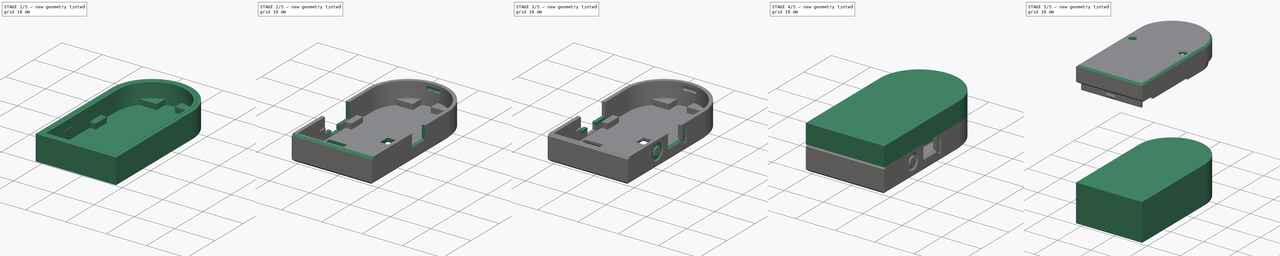
[diagram: build sequence overview — one tinted view per stage of 5, left to right]
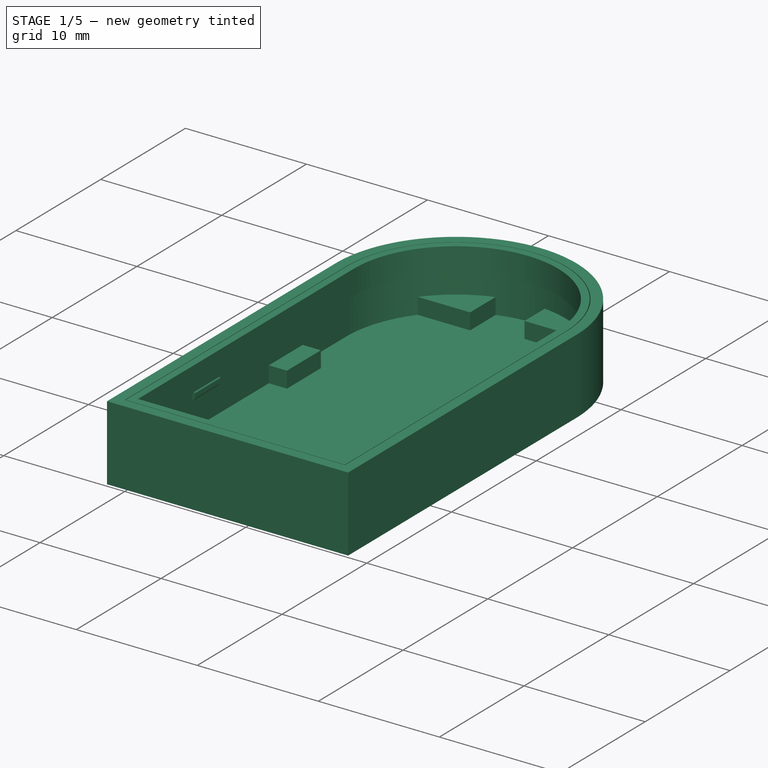
[diagram: stage 1 of 5 — iso view after this stage's code; geometry added in this stage tinted green]
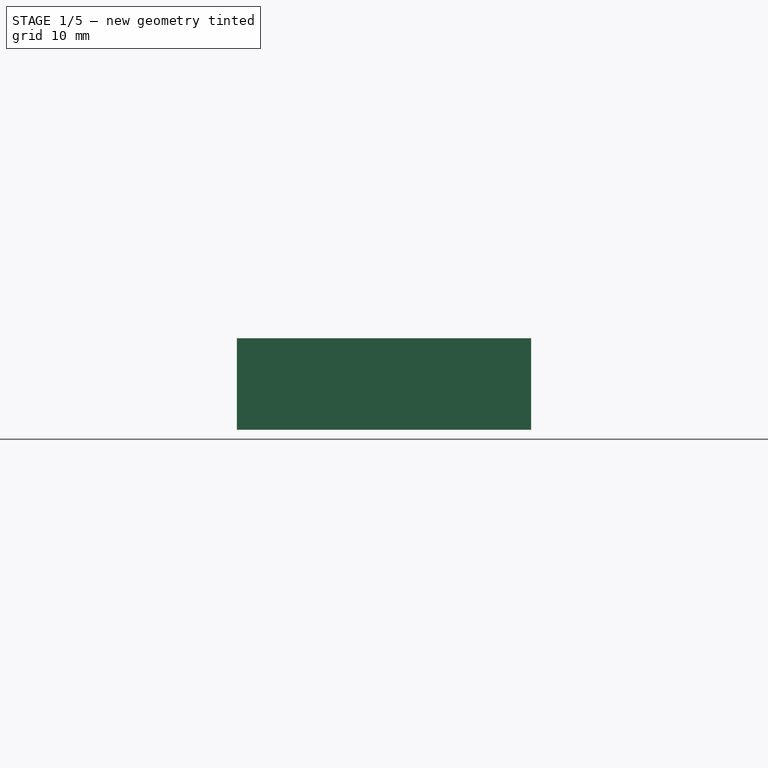
[diagram: stage 1 of 5 — front view after this stage's code; geometry added in this stage tinted green]
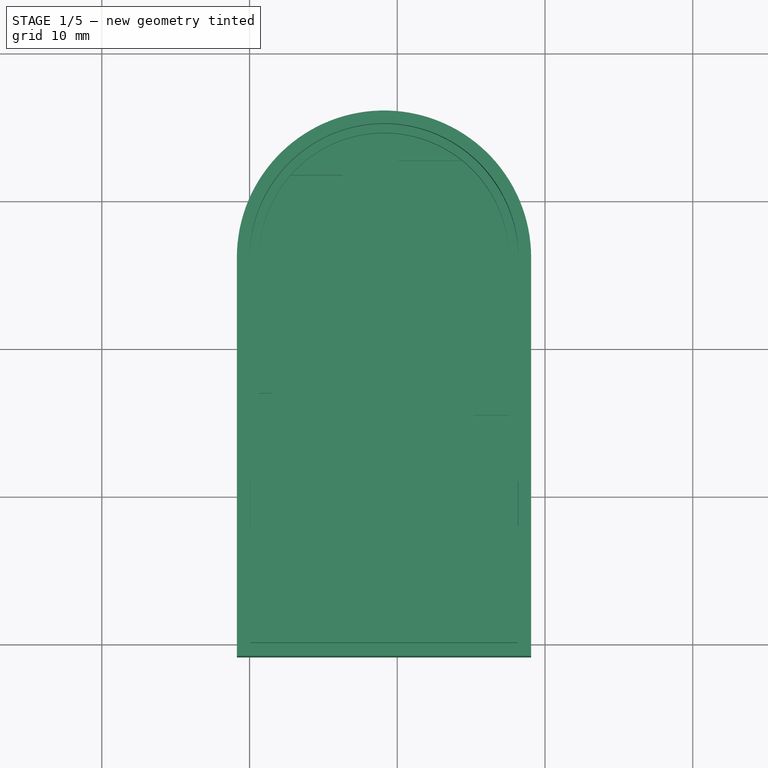
[diagram: stage 1 of 5 — top view after this stage's code; geometry added in this stage tinted green]
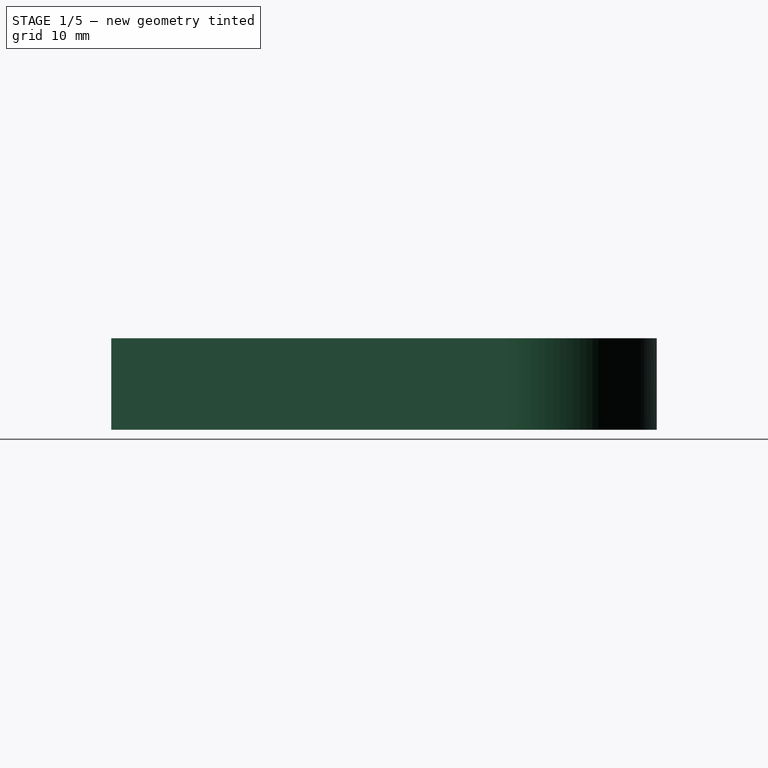
[diagram: stage 1 of 5 — right view after this stage's code; geometry added in this stage tinted green]
FCSTD DOCUMENT  (FreeCAD 0.20R29177 (Git))
Label: IMU-Case2_v12
License: All rights reserved
LicenseURL: http://en.wikipedia.org/wiki/All_rights_reserved
objects: Sketcher::SketchObject×15, PartDesign::Pocket×11, PartDesign::Pad×8, PartDesign::Chamfer×8, PartDesign::Body×3, PartDesign::SubShapeBinder×2, PartDesign::ShapeBinder×1, Spreadsheet::Sheet×1, App::Link×1, App::Part×1
note: 75 computed .brp shape members not serialized (recipe doc carries the construction recipe); baked Part::Feature solids carry a one-line shape summary decoded from their .brp

FEATURE [Sketcher::SketchObject] Sketch
  FullyConstrained = true
  expr: Constraints[15] = Spreadsheet.pcb_h + Spreadsheet.pcb_clearance
  expr: Constraints[25] = Spreadsheet.wall_t
  expr: Constraints[26] = Spreadsheet.wall_t
  expr: Constraints[27] = Spreadsheet.wall_t
  expr: Constraints[8] = Spreadsheet.pcb_w + Spreadsheet.pcb_clearance
  sketch-geometry (9):
    g0: LineSegment StartX=0 StartY=0 StartZ=0 EndX=18.2 EndY=0 EndZ=0
    g1: LineSegment StartX=18.2 StartY=0 StartZ=0 EndX=18.2 EndY=26.1 EndZ=0
    g2: LineSegment StartX=0 StartY=0 StartZ=0 EndX=0 EndY=26.1 EndZ=0
    g3: ArcOfCircle CenterX=9.1 CenterY=26.1 CenterZ=0 NormalX=0 NormalY=0 NormalZ=1 AngleXU=0 Radius=9.1 StartAngle=3.3334e-06 EndAngle=3.14159
    g4: LineSegment StartX=9.1 StartY=0 StartZ=0 EndX=9.1 EndY=35.2 EndZ=0
    g5: LineSegment StartX=-0.86 StartY=-0.86 StartZ=0 EndX=19.06 EndY=-0.86 EndZ=0
    g6: LineSegment StartX=19.06 StartY=-0.86 StartZ=0 EndX=19.06 EndY=26.1 EndZ=0
    g7: LineSegment StartX=-0.86 StartY=-0.86 StartZ=0 EndX=-0.86 EndY=26.1 EndZ=0
    g8: ArcOfCircle CenterX=9.1 CenterY=26.1 CenterZ=0 NormalX=0 NormalY=0 NormalZ=1 AngleXU=0 Radius=9.96 StartAngle=1.28674e-09 EndAngle=3.14159
  constraints (29):
    c: Coincident(g0,g-1)
    c: Horizontal(g0)
    c: Coincident(g1,g0)
    c: Vertical(g1)
    c: Coincident(g2,g0)
    c: Vertical(g2)
    c: Coincident(g3,g2)
    c: Coincident(g3,g1)
    c: Distance(g0) = 18.2
    c: Tangent(g3,g2)
    c: Tangent(g3,g1)
    c: PointOnObject(g4,g0)
    c: PointOnObject(g4,g3)
    c: Vertical(g4)
    c: PointOnObject(g3,g4)
    c: Distance(g4) = 35.2
    c: Horizontal(g5)
    c: Coincident(g6,g5)
    c: Vertical(g6)
    c: Coincident(g7,g5)
    c: Vertical(g7)
    c: Coincident(g8,g7)
    c: Coincident(g8,g6)
    c: Tangent(g8,g7)
    c: Tangent(g8,g6)
    c: DistanceY(g5,g0) = 0.86
    c: DistanceX(g0,g5) = 0.86
    c: DistanceX(g5,g-1) = 0.86
    c: DistanceY(g1,g6) = 0
FEATURE [PartDesign::Pad] Pad
  Direction = (0,0,1)
  Length = 3.9
  Length2 = 2.3
  Profile = -> Sketch
  Type = 4
  expr: Length = Spreadsheet.box_pocket_depth
FEATURE [Sketcher::SketchObject] Sketch001
  FullyConstrained = true
  MapMode = 5
  Support = -> [XY_Plane001]
  expr: Constraints[14] = Spreadsheet.pcb_h + Spreadsheet.pcb_clearance
  expr: Constraints[8] = Spreadsheet.pcb_w + Spreadsheet.pcb_clearance
  sketch-geometry (5):
    g0: LineSegment StartX=0 StartY=26.1 StartZ=0 EndX=0 EndY=0 EndZ=0
    g1: LineSegment StartX=18.2 StartY=0 StartZ=0 EndX=18.2 EndY=26.1 EndZ=0
    g2: ArcOfCircle CenterX=9.1 CenterY=26.1 CenterZ=0 NormalX=0 NormalY=0 NormalZ=1 AngleXU=0 Radius=9.1 StartAngle=0 EndAngle=3.14159
    g3: LineSegment StartX=0 StartY=0 StartZ=0 EndX=18.2 EndY=0 EndZ=0
    g4: LineSegment StartX=9.1 StartY=35.2 StartZ=0 EndX=9.1 EndY=0 EndZ=0
  constraints (15):
    c: Vertical(g0)
    c: Vertical(g1)
    c: Coincident(g2,g0)
    c: Tangent(g2,g0)
    c: Coincident(g3,g0)
    c: Coincident(g3,g1)
    c: Horizontal(g3)
    c: Coincident(g-1,g0)
    c: DistanceX(g0,g1) = 18.2
    c: Tangent(g2,g1) = -1.5708
    c: PointOnObject(g4,g2)
    c: PointOnObject(g4,g3)
    c: Vertical(g4)
    c: PointOnObject(g2,g4)
    c: DistanceY(g4,g4) = 35.2
FEATURE [PartDesign::Pocket] Pocket
  BaseFeature = -> Pad
  Direction = (0,0,-1)
  Length = 0.01
  Length2 = 20
  Profile = -> Sketch001
  Type = 4
FEATURE [Sketcher::SketchObject] Sketch002
  ExternalGeometry = -> [Pocket]
  FullyConstrained = true
  MapMode = 5
  Placement = pos=(-0.86,0,0) rot=(0.57735,-0.57735,-0.57735;2.0944rad)
  Support = -> [Pocket]
  sketch-geometry (8):
    g0: LineSegment StartX=-18.3 StartY=-0.01 StartZ=0 EndX=-18.3 EndY=3.99 EndZ=0
    g1: LineSegment StartX=-18.3 StartY=3.99 StartZ=0 EndX=-9.7 EndY=3.99 EndZ=0
    g2: LineSegment StartX=-9.7 StartY=3.99 StartZ=0 EndX=-9.7 EndY=-0.01 EndZ=0
    g3: LineSegment StartX=-15 StartY=-1.19 StartZ=0 EndX=-12 EndY=-1.19 EndZ=0
    g4: LineSegment StartX=-12 StartY=-1.19 StartZ=0 EndX=-12 EndY=-0.01 EndZ=0
    g5: LineSegment StartX=-9.7 StartY=-0.01 StartZ=0 EndX=-12 EndY=-0.01 EndZ=0
    g6: LineSegment StartX=-18.3 StartY=-0.01 StartZ=0 EndX=-15 EndY=-0.01 EndZ=0
    g7: LineSegment StartX=-15 StartY=-0.01 StartZ=0 EndX=-15 EndY=-1.19 EndZ=0
  constraints (24):
    c: PointOnObject(g0,g-4)
    c: Vertical(g0)
    c: Coincident(g1,g0)
    c: Horizontal(g1)
    c: Coincident(g2,g1)
    c: PointOnObject(g2,g-4)
    c: Vertical(g2)
    c: DistanceX(g2,g-1) = 9.7
    c: DistanceX(g0,g-1) = 18.3
    c: DistanceY(g0,g0) = 4
    c: Horizontal(g3)
    c: Coincident(g4,g3)
    c: Vertical(g4)
    c: DistanceY(g3,g0) = 1.18  'bottom_clearance'
    c: DistanceX(g3,g3) = 3
    c: Coincident(g5,g2)
    c: Coincident(g5,g4)
    c: Horizontal(g5)
    c: Coincident(g6,g0)
    c: PointOnObject(g6,g-4)
    c: Coincident(g7,g6)
    c: Coincident(g7,g3)
    c: Vertical(g7)
    c: DistanceX(g3,g-4) = 12
FEATURE [Sketcher::SketchObject] Sketch003
  ExternalGeometry = -> [Sketch001]
  FullyConstrained = true
  MapMode = 5
  Support = -> [XY_Plane001]
  sketch-geometry (24):
    g0: LineSegment StartX=17.2 StartY=10 StartZ=0 EndX=13.2 EndY=10 EndZ=0
    g1: LineSegment StartX=13.2 StartY=10 StartZ=0 EndX=13.2 EndY=0 EndZ=0
    g2: LineSegment StartX=13.2 StartY=0 StartZ=0 EndX=0.8 EndY=0 EndZ=0
    g3: LineSegment StartX=0.8 StartY=0 StartZ=0 EndX=0.8 EndY=4 EndZ=0
    g4: LineSegment StartX=0.8 StartY=4 StartZ=0 EndX=0 EndY=4 EndZ=0
    g5: LineSegment StartX=0 StartY=4 StartZ=0 EndX=0 EndY=17 EndZ=0
    g6: LineSegment StartX=0 StartY=17 StartZ=0 EndX=1.5 EndY=17 EndZ=0
    g7: LineSegment StartX=1.5 StartY=17 StartZ=0 EndX=1.5 EndY=21 EndZ=0
    g8: LineSegment StartX=1.5 StartY=21 StartZ=0 EndX=0 EndY=21 EndZ=0
    g9: LineSegment StartX=18.2 StartY=15.5 StartZ=0 EndX=15.2 EndY=15.5 EndZ=0
    g10: LineSegment StartX=15.2 StartY=15.5 StartZ=0 EndX=15.2 EndY=17 EndZ=0
    g11: LineSegment StartX=15.2 StartY=17 StartZ=0 EndX=18.2 EndY=17 EndZ=0
    g12: ArcOfCircle CenterX=9.1 CenterY=26.1 CenterZ=0 NormalX=0 NormalY=0 NormalZ=1 AngleXU=0 Radius=9.1 StartAngle=2.47053 EndAngle=3.14159
    g13: LineSegment StartX=1.97321 StartY=31.7585 StartZ=0 EndX=6.3 EndY=31.7585 EndZ=0
    g14: LineSegment StartX=6.3 StartY=31.7585 StartZ=0 EndX=6.3 EndY=34.7585 EndZ=0
    g15: LineSegment StartX=10.1 StartY=35.1449 StartZ=0 EndX=10.1 EndY=32.7449 EndZ=0
    g16: LineSegment StartX=10.1 StartY=32.7449 StartZ=0 EndX=15.3174 EndY=32.7449 EndZ=0
    g17: ArcOfCircle CenterX=9.1 CenterY=26.1 CenterZ=0 NormalX=0 NormalY=0 NormalZ=1 AngleXU=0 Radius=9.1 StartAngle=1.46068 EndAngle=1.88356
    g18: ArcOfCircle CenterX=9.1 CenterY=26.1 CenterZ=0 NormalX=0 NormalY=0 NormalZ=1 AngleXU=0 Radius=9.1 StartAngle=8.4315e-12 EndAngle=0.818626
    g19: LineSegment StartX=18.2 StartY=26.1 StartZ=0 EndX=18.2 EndY=17 EndZ=0
    g20: LineSegment StartX=0 StartY=26.1 StartZ=0 EndX=0 EndY=21 EndZ=0
    g21: LineSegment StartX=17.2 StartY=10 StartZ=0 EndX=17.2 EndY=2 EndZ=0
    g22: LineSegment StartX=17.2 StartY=2 StartZ=0 EndX=18.2 EndY=2 EndZ=0
    g23: LineSegment StartX=18.2 StartY=15.5 StartZ=0 EndX=18.2 EndY=2 EndZ=0
  constraints (71):
    c: Horizontal(g0)
    c: Coincident(g1,g0)
    c: Vertical(g1)
    c: Coincident(g2,g1)
    c: Coincident(g3,g2)
    c: Vertical(g3)
    c: Coincident(g4,g3)
    c: Horizontal(g4)
    c: Coincident(g5,g4)
    c: Coincident(g6,g5)
    c: Horizontal(g6)
    c: Coincident(g7,g6)
    c: Vertical(g7)
    c: Coincident(g8,g7)
    c: Horizontal(g8)
    c: Horizontal(g9)
    c: Coincident(g10,g9)
    c: Vertical(g10)
    c: Coincident(g11,g10)
    c: Horizontal(g11)
    c: Coincident(g13,g12)
    c: Horizontal(g13)
    c: Coincident(g14,g13)
    c: Vertical(g14)
    c: Vertical(g15)
    c: Coincident(g16,g15)
    c: Horizontal(g16)
    c: Coincident(g17,g12)
    c: Coincident(g17,g14)
    c: Coincident(g17,g15)
    c: Coincident(g18,g12)
    c: Coincident(g18,g16)
    c: Coincident(g19,g18)
    c: Coincident(g19,g11)
    c: DistanceX(g-1,g2) = 0.8
    c: DistanceY(g-1,g4) = 4
    c: DistanceY(g5,g8) = 4
    c: Coincident(g20,g12)
    c: Coincident(g20,g8)
    c: DistanceX(g5,g6) = 1.5
    c: DistanceY(g-1,g5) = 17
    c: DistanceY(g1,g11) = 17
    c: DistanceX(g10,g11) = 3
    c: DistanceX(g12,g15) = 1
    c: DistanceY(g15,g15) = 2.4
    c: DistanceX(g13,g12) = 2.8
    c: DistanceY(g13,g14) = 3
    c: Vertical(g21)
    c: Coincident(g0,g21)
    c: Coincident(g22,g21)
    c: Horizontal(g22)
    c: Coincident(g23,g9)
    c: Coincident(g23,g22)
    c: Coincident(g18,g-4)
    c: Coincident(g12,g-5)
    c: PointOnObject(g16,g-3)
    c: PointOnObject(g12,g-3)
    c: PointOnObject(g14,g-3)
    c: Horizontal(g2)
    c: PointOnObject(g2,g-6)
    c: DistanceX(g21,g22) = 1
    c: DistanceY(g1,g0) = 10
    c: DistanceX(g0,g0) = 4
    c: Vertical(g23)
    c: PointOnObject(g9,g-4)
    c: DistanceY(g-6,g22) = 2
    c: DistanceY(g9,g10) = 1.5
    c: Vertical(g19)
    c: Vertical(g5)
    c: PointOnObject(g4,g-5)
    c: PointOnObject(g8,g-5)
FEATURE [PartDesign::Pocket] Pocket001
  BaseFeature = -> Pocket
  Direction = (0,0,-1)
  Length = 1.35
  Length2 = 100
  Profile = -> Sketch003
  Type = 0
FEATURE [Sketcher::SketchObject] Sketch004
  FullyConstrained = true
  MapMode = 5
  Placement = pos=(19.06,0,0) rot=(0.57735,0.57735,0.57735;2.0944rad)
  Support = -> [Pad]
  sketch-geometry (4):
    g0: LineSegment StartX=18 StartY=0.7 StartZ=0 EndX=18 EndY=4.7 EndZ=0
    g1: LineSegment StartX=18 StartY=4.7 StartZ=0 EndX=13.3 EndY=4.7 EndZ=0
    g2: LineSegment StartX=13.3 StartY=4.7 StartZ=0 EndX=13.3 EndY=0.7 EndZ=0
    g3: LineSegment StartX=18 StartY=0.7 StartZ=0 EndX=13.3 EndY=0.7 EndZ=0
  constraints (12):
    c: DistanceX(g-1,g0) = 18
    c: Vertical(g0)
    c: Coincident(g1,g0)
    c: Horizontal(g1)
    c: Coincident(g2,g1)
    c: Vertical(g2)
    c: DistanceX(g-1,g2) = 13.3
    c: DistanceY(g0,g0) = 4
    c: Coincident(g3,g0)
    c: Horizontal(g3)
    c: Coincident(g2,g3)
    c: DistanceY(g-1,g2) = 0.7
FEATURE [Sketcher::SketchObject] Sketch006
  FullyConstrained = true
  MapMode = 5
  Placement = pos=(0,0,-2.3) rot=(1,0,0;3.14159rad)
  Support = -> [Pad]
  sketch-geometry (8):
    g0: LineSegment StartX=0.5 StartY=-5 StartZ=0 EndX=5 EndY=-5 EndZ=0
    g1: LineSegment StartX=5 StartY=-5 StartZ=0 EndX=5 EndY=-10.5 EndZ=0
    g2: LineSegment StartX=5 StartY=-10.5 StartZ=0 EndX=0.5 EndY=-10.5 EndZ=0
    g3: LineSegment StartX=0.5 StartY=-10.5 StartZ=0 EndX=0.5 EndY=-5 EndZ=0
    g4: LineSegment StartX=9.7 StartY=-15.3 StartZ=0 EndX=13.4 EndY=-15.3 EndZ=0
    g5: LineSegment StartX=13.4 StartY=-15.3 StartZ=0 EndX=13.4 EndY=-18 EndZ=0
    g6: LineSegment StartX=13.4 StartY=-18 StartZ=0 EndX=9.7 EndY=-18 EndZ=0
    g7: LineSegment StartX=9.7 StartY=-18 StartZ=0 EndX=9.7 EndY=-15.3 EndZ=0
  constraints (24):
    c: Horizontal(g0)
    c: DistanceY(g0,g-1) = 5
    c: Coincident(g1,g0)
    c: Vertical(g1)
    c: Coincident(g2,g1)
    c: Horizontal(g2)
    c: Coincident(g3,g2)
    c: Coincident(g3,g0)
    c: Vertical(g3)
    c: DistanceY(g2,g-1) = 10.5
    c: DistanceX(g2,g1) = 4.5
    c: Horizontal(g4)
    c: Vertical(g5)
    c: Coincident(g6,g5)
    c: Horizontal(g6)
    c: Coincident(g7,g6)
    c: Vertical(g7)
    c: DistanceY(g6,g4) = 2.7
    c: DistanceX(g-1,g0) = 0.5
    c: Coincident(g5,g4)
    c: Coincident(g7,g4)
    c: DistanceY(g4,g-1) = 15.3
    c: DistanceX(g-1,g4) = 9.7
    c: DistanceX(g6,g5) = 3.7
FEATURE [Sketcher::SketchObject] Sketch007
  AttachmentOffset = pos=(0,0,8) rot=(0,0,1;0rad)
  ExternalGeometry = -> [Pocket001]
  FullyConstrained = true
  MapMode = 5
  Placement = pos=(0,8,-1.8e-15) rot=(0,0.707107,0.707107;3.14159rad)
  Support = -> [Pocket001]
  expr: Constraints[10] = Spreadsheet.pcb_t - 0.1
  expr: Constraints[13] = Spreadsheet.pcb_tab_w
  sketch-geometry (10):
    g0: LineSegment StartX=-18.2 StartY=3.9 StartZ=0 EndX=0 EndY=3.9 EndZ=0
    g1: LineSegment StartX=-9.1 StartY=3.9 StartZ=0 EndX=-9.1 EndY=0 EndZ=0
    g2: LineSegment StartX=0 StartY=0.79 StartZ=0 EndX=-0.2 EndY=0.99 EndZ=0
    g3: LineSegment StartX=-0.2 StartY=0.99 StartZ=0 EndX=-0.2 EndY=1.39 EndZ=0
    g4: LineSegment StartX=-0.2 StartY=1.39 StartZ=0 EndX=0 EndY=1.59 EndZ=0
    g5: LineSegment StartX=0 StartY=1.59 StartZ=0 EndX=0 EndY=0.79 EndZ=0
    g6: LineSegment StartX=-18.2 StartY=1.59 StartZ=0 EndX=-18 EndY=1.39 EndZ=0
    g7: LineSegment StartX=-18 StartY=1.39 StartZ=0 EndX=-18 EndY=0.99 EndZ=0
    g8: LineSegment StartX=-18 StartY=0.99 StartZ=0 EndX=-18.2 EndY=0.79 EndZ=0
    g9: LineSegment StartX=-18.2 StartY=1.59 StartZ=0 EndX=-18.2 EndY=0.79 EndZ=0
  constraints (25):
    c: Coincident(g0,g-4)
    c: Coincident(g0,g-3)
    c: PointOnObject(g1,g-1)
    c: Vertical(g1)
    c: Symmetric(g0,g0,g1)
    c: PointOnObject(g2,g-3)
    c: Coincident(g3,g2)
    c: Vertical(g3)
    c: Coincident(g4,g3)
    c: PointOnObject(g4,g-3)
    c: DistanceY(g-3,g2) = 0.8
    c: Angle(g-3,g2) = 0.785398
    c: Angle(g-3,g4) = 2.35619
    c: DistanceX(g2,g2) = 0.2
    c: DistanceY(g2,g3) = 0.4
    c: Coincident(g5,g4)
    c: Coincident(g5,g2)
    c: Coincident(g7,g6)
    c: Coincident(g8,g7)
    c: Coincident(g9,g6)
    c: Coincident(g9,g8)
    c: Symmetric(g6,g4,g1)
    c: Symmetric(g6,g3,g1)
    c: Symmetric(g2,g7,g1)
    c: Symmetric(g8,g2,g1)
FEATURE [PartDesign::Pad] Pad001
  BaseFeature = -> Pocket001
  Direction = (0,1,-2e-16)
  Length = 3
  Length2 = 100
  Profile = -> Sketch007
  Type = 0
FEATURE [PartDesign::ShapeBinder] ReferencePocket001
  Support = -> [Pocket]
  TraceSupport = false
FEATURE [Sketcher::SketchObject] Sketch008
  ExternalGeometry = -> [ReferencePocket001]
  FullyConstrained = true
  MapMode = 5
  Placement = pos=(0,0,3.9) rot=(0,0,1;0rad)
  Support = -> [ReferencePocket001]
  expr: Constraints[13] = Spreadsheet.lid_clearance
  expr: Constraints[14] = Spreadsheet.lid_clearance
  expr: Constraints[25] = Spreadsheet.lid_wall_t
  expr: Constraints[26] = Spreadsheet.lid_wall_t
  sketch-geometry (12):
    g0: LineSegment StartX=0 StartY=0 StartZ=0 EndX=18.2 EndY=0 EndZ=0
    g1: LineSegment StartX=18.2 StartY=0 StartZ=0 EndX=18.2 EndY=26.1 EndZ=0
    g2: LineSegment StartX=0 StartY=0 StartZ=0 EndX=0 EndY=26.1 EndZ=0
    g3: ArcOfCircle CenterX=9.1 CenterY=26.1 CenterZ=0 NormalX=0 NormalY=0 NormalZ=1 AngleXU=0 Radius=9.1 StartAngle=6.28318 EndAngle=9.42478
    g4: LineSegment StartX=0.05 StartY=0.05 StartZ=0 EndX=18.15 EndY=0.05 EndZ=0
    g5: LineSegment StartX=18.15 StartY=0.05 StartZ=0 EndX=18.15 EndY=26.1 EndZ=0
    g6: LineSegment StartX=0.05 StartY=0.05 StartZ=0 EndX=0.05 EndY=26.1 EndZ=0
    g7: ArcOfCircle CenterX=9.1 CenterY=26.1 CenterZ=0 NormalX=0 NormalY=0 NormalZ=1 AngleXU=0 Radius=9.05 StartAngle=1e-16 EndAngle=3.14159
    g8: LineSegment StartX=0.65 StartY=0.65 StartZ=0 EndX=17.55 EndY=0.65 EndZ=0
    g9: LineSegment StartX=17.55 StartY=0.65 StartZ=0 EndX=17.55 EndY=26.1 EndZ=0
    g10: LineSegment StartX=0.65 StartY=0.65 StartZ=0 EndX=0.65 EndY=26.1 EndZ=0
    g11: ArcOfCircle CenterX=9.1 CenterY=26.1 CenterZ=0 NormalX=0 NormalY=0 NormalZ=1 AngleXU=0 Radius=8.45 StartAngle=0 EndAngle=3.14159
  constraints (28):
    c: Coincident(g0,g-1)
    c: Coincident(g0,g-4)
    c: Coincident(g1,g0)
    c: Coincident(g1,g-6)
    c: Coincident(g2,g-1)
    c: Coincident(g2,g-5)
    c: Coincident(g3,g1)
    c: Horizontal(g4)
    c: Coincident(g5,g4)
    c: Vertical(g5)
    c: Coincident(g6,g4)
    c: Vertical(g6)
    c: Tangent(g7,g5) = -1.5708
    c: DistanceX(g0,g4) = 0.05
    c: DistanceY(g0,g4) = 0.05
    c: Tangent(g7,g6) = 1.5708
    c: Coincident(g3,g7)
    c: Horizontal(g8)
    c: Coincident(g9,g8)
    c: Vertical(g9)
    c: Coincident(g10,g8)
    c: Vertical(g10)
    c: Tangent(g11,g10) = 1.5708
    c: Tangent(g11,g9) = -1.5708
    c: Coincident(g11,g3)
    c: DistanceX(g4,g8) = 0.6
    c: DistanceY(g4,g8) = 0.6
    c: Tangent(g3,g2) = 1.5708
FEATURE [Spreadsheet::Sheet] Spreadsheet  label="params"
  cells = A1=pcb_w; B1(pcb_w)=18; A2=pcb_h; B2(pcb_h)=35; A3=pcb_t; B3(pcb_t)=0.9; A4=pcb_clearance; B4(pcb_clearance)=0.2; A5=pcb_tab_w; B5(pcb_tab_w)=0.2; A6=wall_t; B6(wall_t)=0.86; A7=lid_wall_t; B7(lid_wall_t)=0.6; A8=lid_clearance; B8(lid_clearance)=0.05; A9=lid_depth; B9(lid_depth)=2; A10=imu_height; B10(imu_height)=8; A11=box_pocket_depth; B11(box_pocket_depth)=3.9; A12=lid_h; B12(lid_h)==imu_height - box_pocket_depth + vertical_t; A13=vertical_t; B13(vertical_t)=0.8; A14=tab_pos_v; B14(tab_pos_v)=1.3; A15=tab_height; B15(tab_height)=0.4; A16=tab_width; B16(tab_width)=2.8; A17=tab_depth; B17(tab_depth)=0.3; A18=battery_d; B18(battery_d)=16.1; A19=led_hole_d; B19(led_hole_d)=1.85
FEATURE [PartDesign::Pad] Pad002
  Direction = (0,0,1)
  Length = 2
  Length2 = 100
  Profile = -> Sketch008
  Reversed = true
  Type = 0
  expr: Length = Spreadsheet.lid_depth
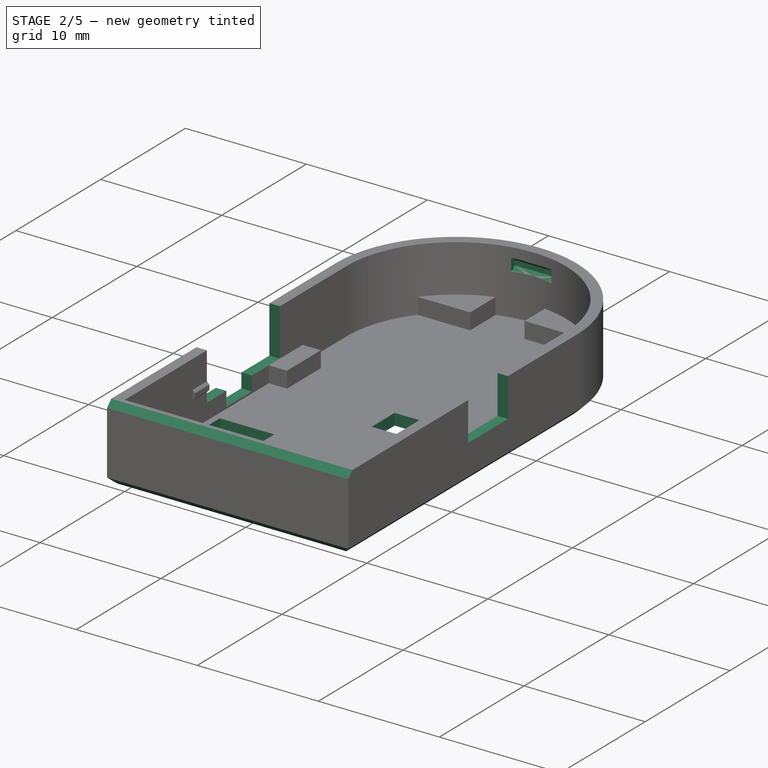
[diagram: stage 2 of 5 — iso view after this stage's code; geometry added in this stage tinted green]
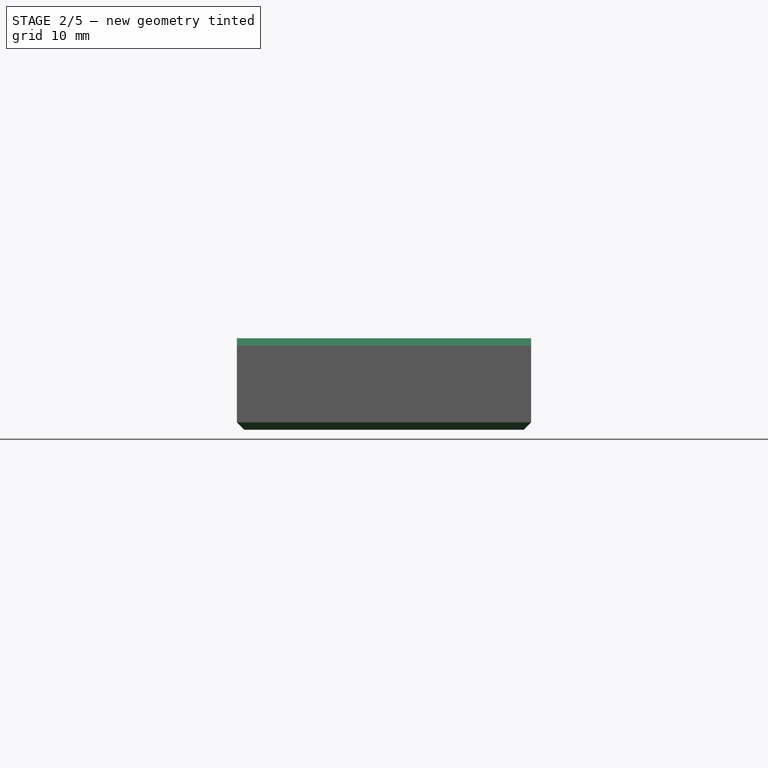
[diagram: stage 2 of 5 — front view after this stage's code; geometry added in this stage tinted green]
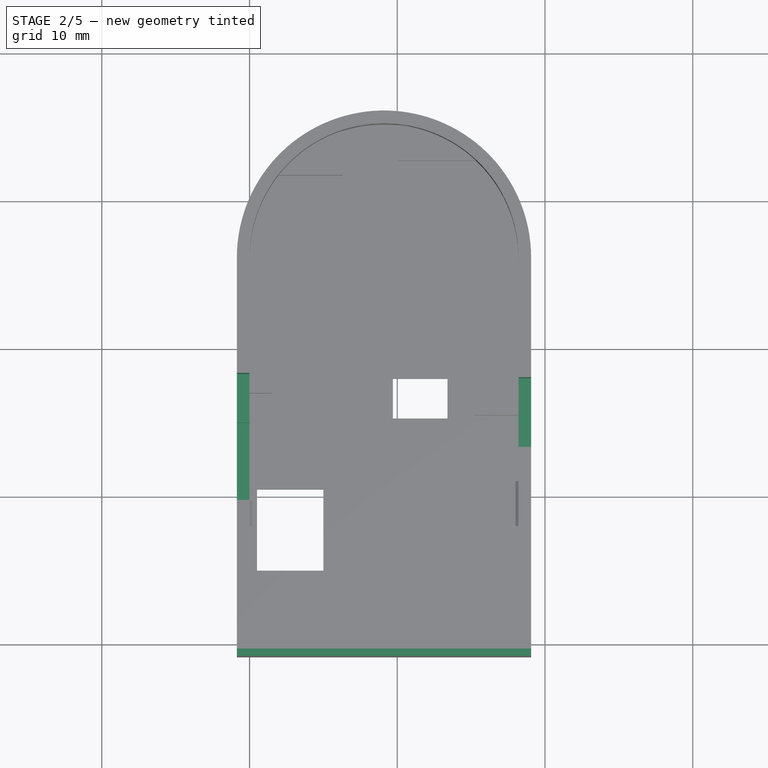
[diagram: stage 2 of 5 — top view after this stage's code; geometry added in this stage tinted green]
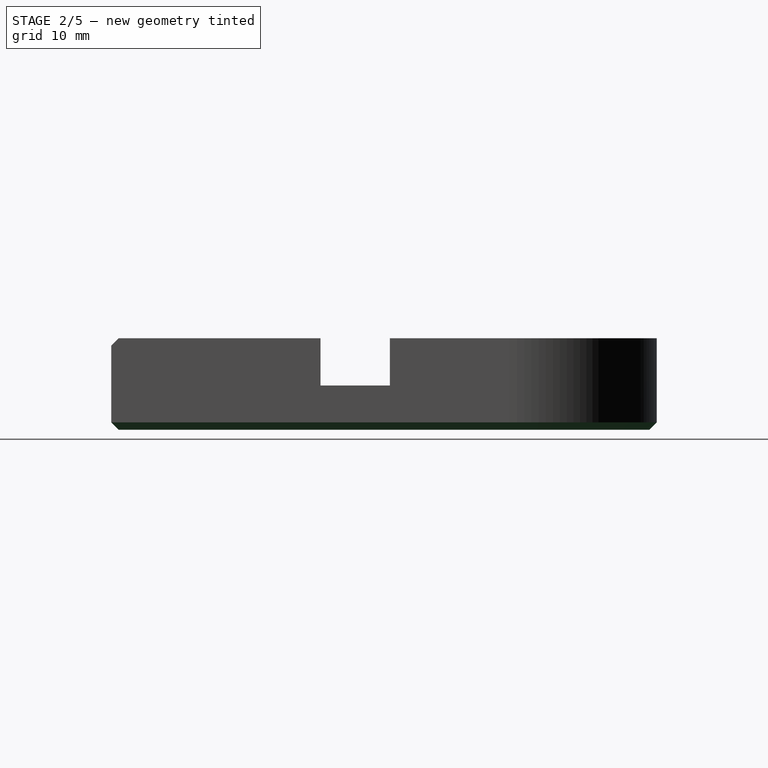
[diagram: stage 2 of 5 — right view after this stage's code; geometry added in this stage tinted green]
FEATURE [PartDesign::Pocket] Pocket002
  BaseFeature = -> Pad001
  Direction = (1,0,0)
  Length = 5
  Length2 = 100
  Profile = -> Sketch002
  Type = 0
FEATURE [PartDesign::Pocket] Pocket003
  BaseFeature = -> Pocket002
  Direction = (-1,0,0)
  Length = 5
  Length2 = 100
  Profile = -> Sketch004
  Type = 0
FEATURE [PartDesign::Pocket] Pocket004
  BaseFeature = -> Pocket003
  Direction = (0,0,1)
  Length = 5
  Length2 = 100
  Profile = -> Sketch006
  Type = 0
FEATURE [App::Link] Link  label="Link(Sketch012)"
  LinkPlacement = pos=(9.05,0,0) rot=(0.57735,-0.57735,-0.57735;2.0944rad)
  LinkedObject = -> Sketch012
  Placement = pos=(9.05,0,0) rot=(0.57735,-0.57735,-0.57735;2.0944rad)
FEATURE [PartDesign::SubShapeBinder] Import001  label="Import001(*Sketch012)"
  BindCopyOnChange = 0
  BindMode = 0
  ClaimChildren = false
  Context = -> Part [Body.Import001.]
  Fuse = false
  MakeFace = false
  OffsetFill = false
  OffsetIntersection = false
  OffsetJoinType = 0
  OffsetOpenResult = false
  PartialLoad = false
  Relative = true
  Support = -> [Link]
  _Version = 8
FEATURE [PartDesign::Pocket] Pocket010
  BaseFeature = -> Pocket004
  Direction = (-1,4e-16,-4e-16)
  Length = 3.3
  Length2 = 100
  Midplane = true
  Profile = -> Import001
  Type = 0
  expr: Length = Spreadsheet.tab_width + 0.5
FEATURE [PartDesign::Chamfer] Chamfer002
  Angle = 45
  Base = -> Pocket010 [Edge3,Edge5,Edge23,Edge16]
  BaseFeature = -> Pocket010
  ChamferType = 0
  FlipDirection = false
  Size = 0.5
  Size2 = 1
  SupportTransform = false
  UseAllEdges = false
FEATURE [PartDesign::Chamfer] Chamfer003
  Angle = 45
  Base = -> Chamfer002 [Edge3]
  BaseFeature = -> Chamfer002
  ChamferType = 0
  FlipDirection = false
  Size = 0.5
  Size2 = 1
  SupportTransform = false
  UseAllEdges = false
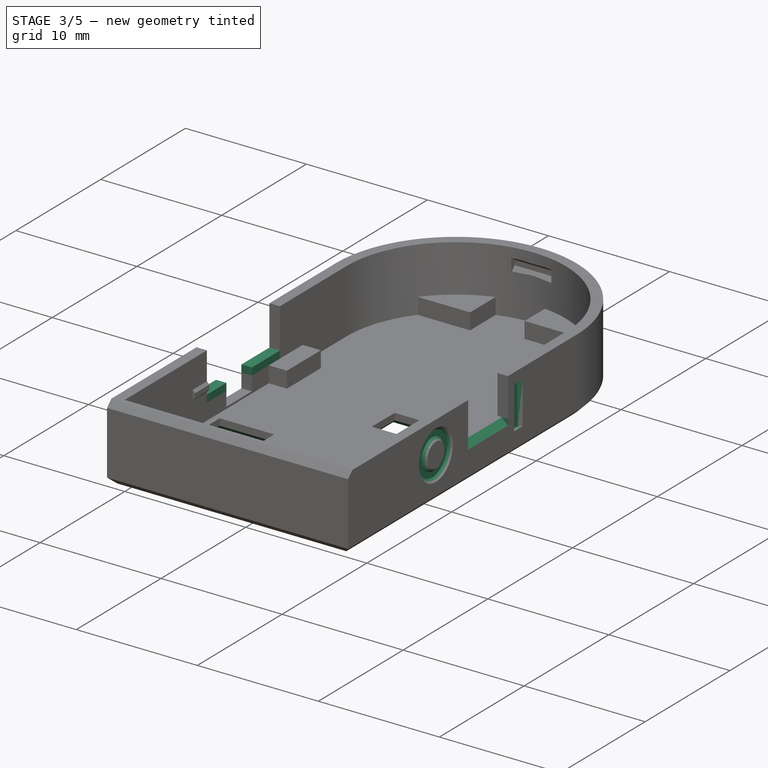
[diagram: stage 3 of 5 — iso view after this stage's code; geometry added in this stage tinted green]
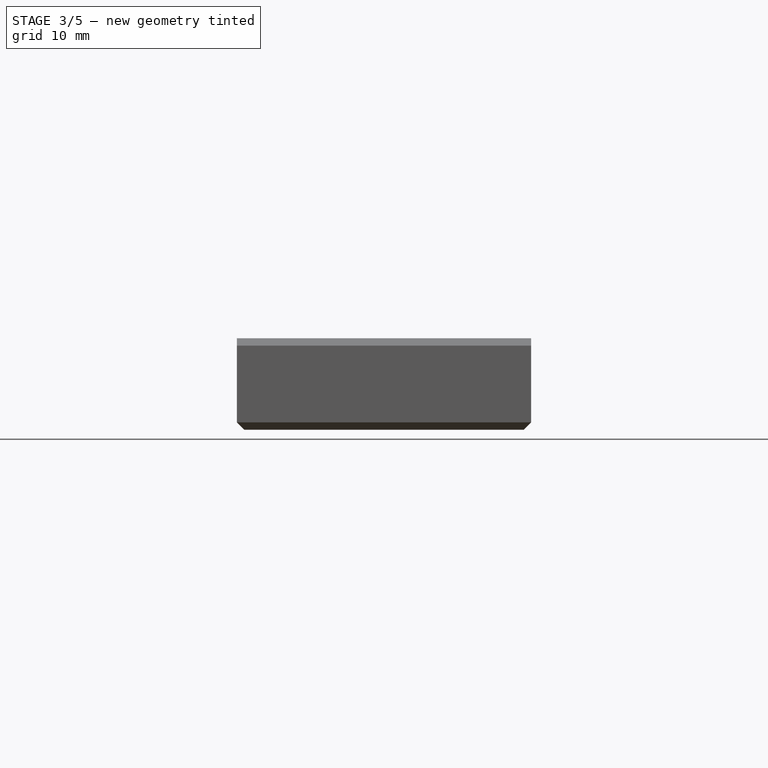
[diagram: stage 3 of 5 — front view after this stage's code; geometry added in this stage tinted green]
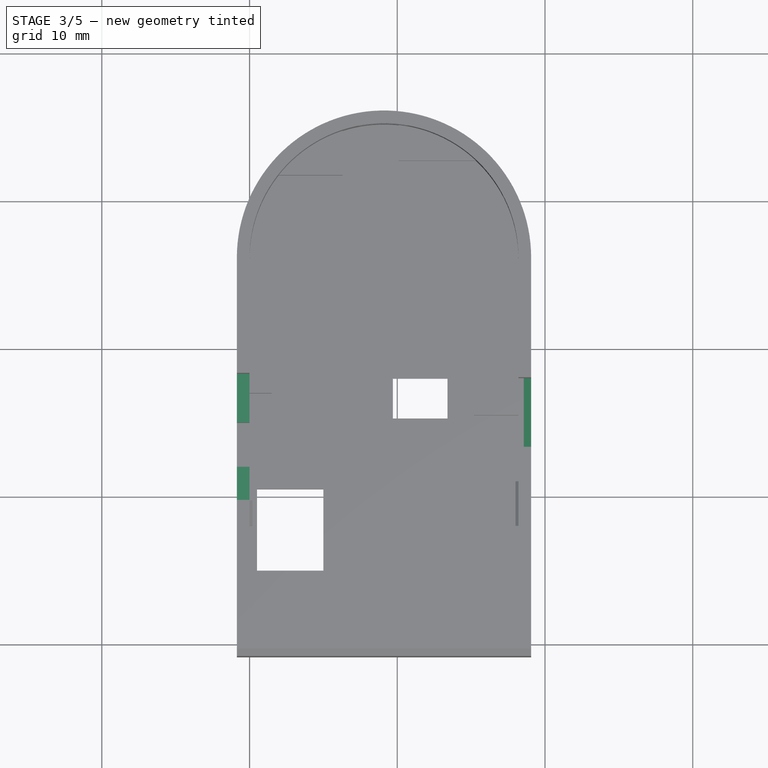
[diagram: stage 3 of 5 — top view after this stage's code; geometry added in this stage tinted green]
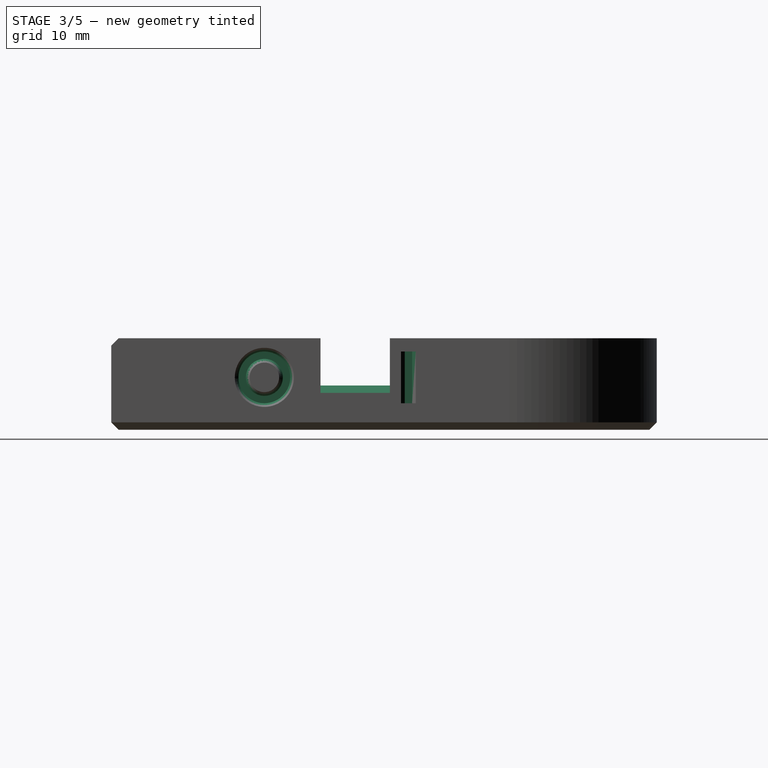
[diagram: stage 3 of 5 — right view after this stage's code; geometry added in this stage tinted green]
FEATURE [PartDesign::Pad] Pad007
  AlongSketchNormal = false
  BaseFeature = -> Chamfer003
  Direction = (0,0,1)
  Length = 0.6
  Length2 = 100
  Profile = -> Chamfer003 [Face14,Face11]
  Type = 0
FEATURE [Sketcher::SketchObject] Sketch015
  FullyConstrained = false
  MapMode = 5
  Placement = pos=(19.06,0,0) rot=(0.57735,0.57735,0.57735;2.0944rad)
  Support = -> [Pad]
  sketch-geometry (7):
    g0: LineSegment StartX=19 StartY=3 StartZ=0 EndX=19.5 EndY=3 EndZ=0
    g1: LineSegment StartX=19.5 StartY=3 StartZ=0 EndX=19.5 EndY=-0.5 EndZ=0
    g2: LineSegment StartX=19.5 StartY=-0.5 StartZ=0 EndX=19 EndY=-0.5 EndZ=0
    g3: LineSegment StartX=19 StartY=-0.5 StartZ=0 EndX=19 EndY=3 EndZ=0
    g4: Circle CenterX=9.5 CenterY=1.25 CenterZ=0 NormalX=0 NormalY=0 NormalZ=1 AngleXU=0 Radius=1.75
    g5: Circle CenterX=9.5 CenterY=1.25 CenterZ=0 NormalX=0 NormalY=0 NormalZ=1 AngleXU=0 Radius=1.25
    g6: LineSegment StartX=19 StartY=-0.5 StartZ=0 EndX=7.37842 EndY=-0.5 EndZ=0
  constraints (19):
    c: Coincident(g0,g1)
    c: Coincident(g1,g2)
    c: Coincident(g2,g3)
    c: Coincident(g3,g0)
    c: Horizontal(g0)
    c: Horizontal(g2)
    c: Vertical(g1)
    c: Vertical(g3)
    c: Coincident(g5,g4)
    c: Diameter(g5) = 2.5
    c: Diameter(g4) = 3.5
    c: DistanceX(g0,g0) = 0.5
    c: DistanceY(g2,g0) = 3.5
    c: DistanceX(g-1,g4) = 9.5
    c: DistanceX(g-1,g2) = 19
    c: Coincident(g6,g2)
    c: Horizontal(g6)
    c: Tangent(g6,g4)
    c: DistanceY(g6,g-1) = 0.5
FEATURE [PartDesign::Pocket] Pocket011
  BaseFeature = -> Pad007
  Direction = (-1,0,0)
  Length = 0.3
  Length2 = 100
  Profile = -> Sketch015
  Type = 0
FEATURE [PartDesign::Chamfer] Chamfer004
  Angle = 45
  Base = -> Pocket011 [Edge75,Edge78,Edge77,Edge76,Edge73,Edge74,Edge71,Edge72]
  BaseFeature = -> Pocket011
  ChamferType = 0
  FlipDirection = false
  Size = 0.4
  Size2 = 1
  SupportTransform = false
  UseAllEdges = false
FEATURE [PartDesign::Chamfer] Chamfer005
  Angle = 45
  Base = -> Chamfer004 [Edge66]
  BaseFeature = -> Chamfer004
  ChamferType = 0
  FlipDirection = false
  Size = 0.5
  Size2 = 1
  SupportTransform = false
  UseAllEdges = false
FEATURE [PartDesign::Body] Body001  label="Top"
  Group = -> [ReferencePocket001,Sketch008,Pad002,Sketch009,Pad003,Pocket005,Sketch010,Pocket006,Sketch011,Pocket007,Sketch012,Pad004,Sketch013,Sketch014,Pad006,Pocket009,Chamfer,Chamfer001,Chamfer006]
  Origin = -> Origin002
  Tip = -> Chamfer006
FEATURE [PartDesign::Chamfer] Chamfer007
  Angle = 45
  Base = -> Chamfer005 [Edge243,Edge12,Edge16,Edge14]
  BaseFeature = -> Chamfer005
  ChamferType = 0
  FlipDirection = false
  Size = 0.25
  Size2 = 1
  SupportTransform = false
  UseAllEdges = false
FEATURE [PartDesign::Body] Body  label="Bottom"
  Group = -> [Sketch,Pad,Sketch001,Sketch015,Pocket,Sketch002,Sketch003,Pocket001,Pad001,Pocket002,Sketch004,Pocket003,Sketch006,Pocket004,Sketch007,Import001,Pocket010,Chamfer002,Chamfer003,Pad007,Pocket011,Chamfer004,Chamfer005,Chamfer007]
  Origin = -> Origin001
  Tip = -> Chamfer007
FEATURE [App::Part] Part
  Group = -> [Body,Body001,Body002]
  Origin = -> Origin
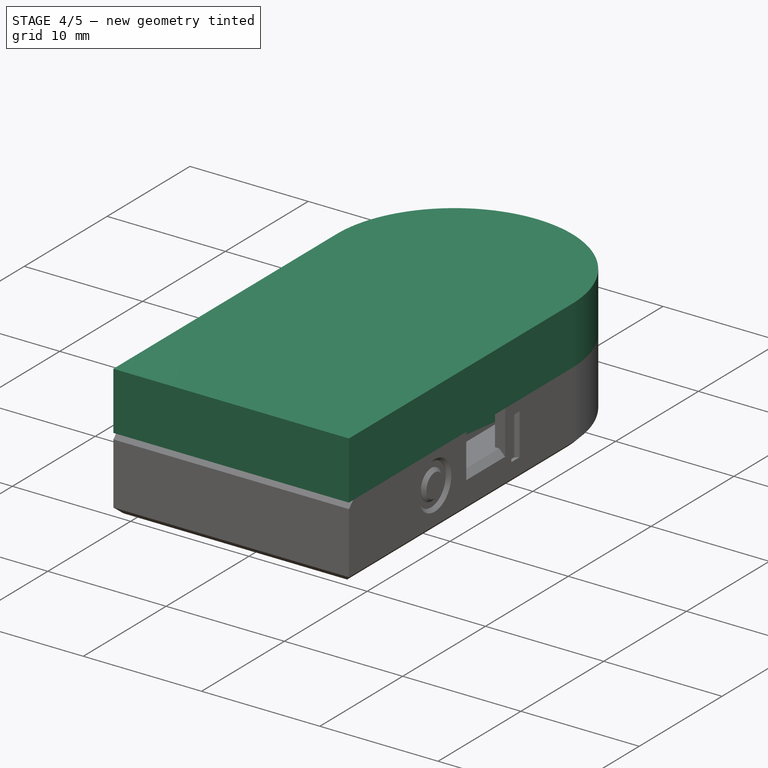
[diagram: stage 4 of 5 — iso view after this stage's code; geometry added in this stage tinted green]
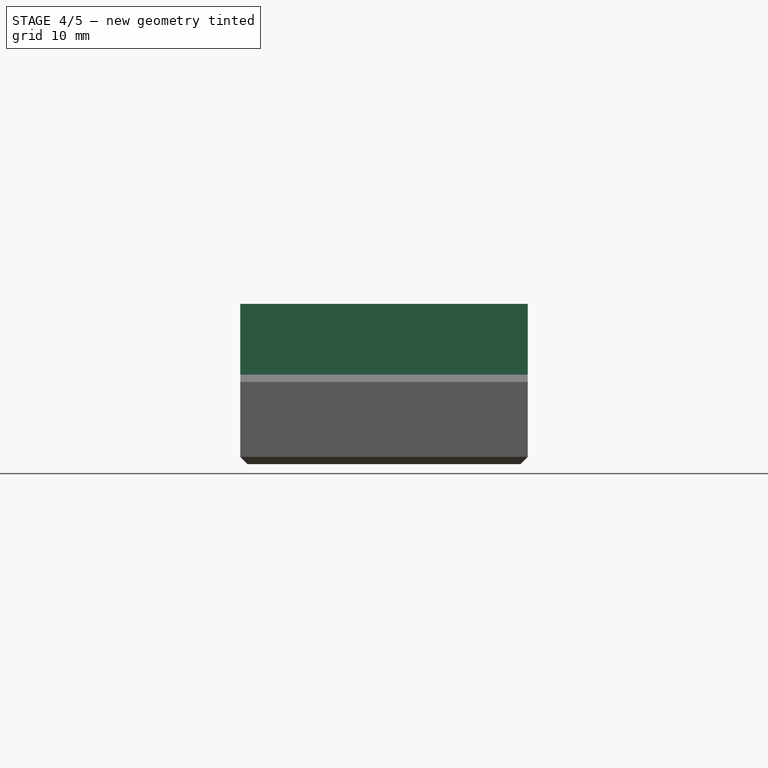
[diagram: stage 4 of 5 — front view after this stage's code; geometry added in this stage tinted green]
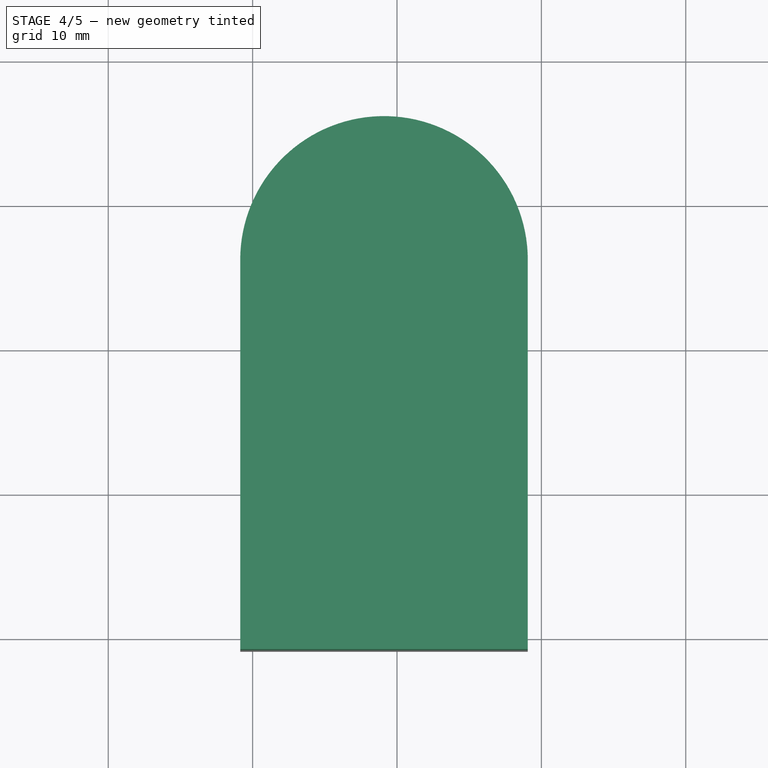
[diagram: stage 4 of 5 — top view after this stage's code; geometry added in this stage tinted green]
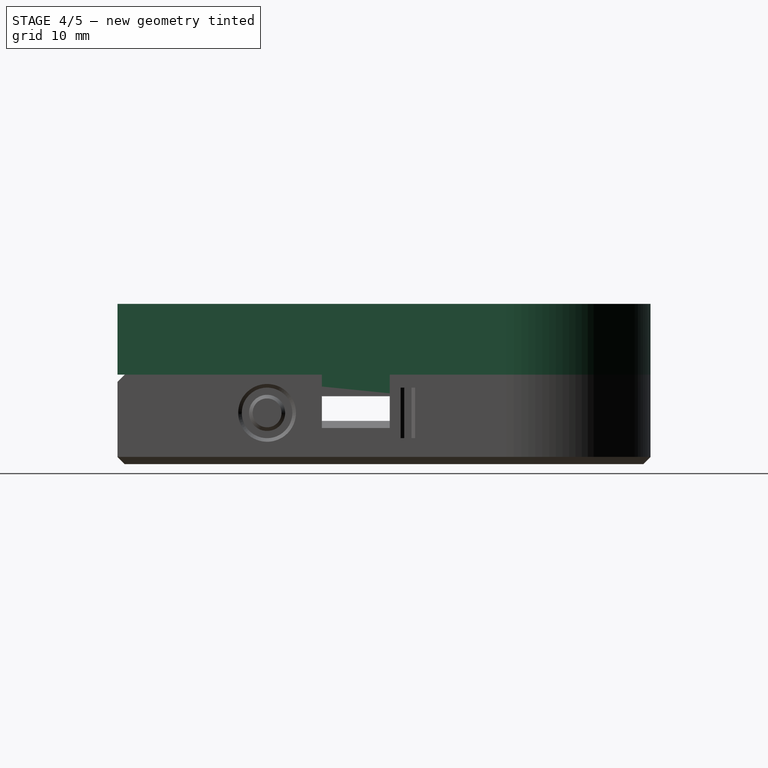
[diagram: stage 4 of 5 — right view after this stage's code; geometry added in this stage tinted green]
FEATURE [Sketcher::SketchObject] Sketch009
  ExternalGeometry = -> [Sketch008,ReferencePocket001]
  FullyConstrained = true
  MapMode = 5
  Placement = pos=(0,0,3.9) rot=(0,0,1;0rad)
  Support = -> [Pad002]
  sketch-geometry (5):
    g0: LineSegment StartX=-0.86 StartY=-0.86 StartZ=0 EndX=19.06 EndY=-0.86 EndZ=0
    g1: LineSegment StartX=19.06 StartY=-0.86 StartZ=0 EndX=19.06 EndY=26.1 EndZ=0
    g2: LineSegment StartX=-0.86 StartY=-0.86 StartZ=0 EndX=-0.86 EndY=26.1 EndZ=0
    g3: ArcOfCircle CenterX=9.1 CenterY=26.1 CenterZ=0 NormalX=0 NormalY=0 NormalZ=1 AngleXU=0 Radius=9.96 StartAngle=6.28319 EndAngle=9.42478
    g4: LineSegment StartX=0.65 StartY=0.65 StartZ=0 EndX=17.55 EndY=0.65 EndZ=0
  constraints (11):
    c: Coincident(g0,g-5)
    c: Coincident(g0,g-6)
    c: Coincident(g1,g0)
    c: Coincident(g1,g-7)
    c: Coincident(g2,g0)
    c: Coincident(g2,g-8)
    c: Coincident(g3,g1)
    c: Tangent(g3,g2) = 1.5708
    c: Coincident(g4,g-3)
    c: Coincident(g4,g-4)
    c: Tangent(g3,g2) = 1.5708
FEATURE [PartDesign::Pad] Pad003
  BaseFeature = -> Pad002
  Direction = (0,0,1)
  Length = 4.9
  Length2 = 100
  Profile = -> Sketch009
  Type = 0
  expr: Length = Spreadsheet.lid_h
FEATURE [PartDesign::Pocket] Pocket005
  BaseFeature = -> Pad003
  Direction = (0,0,1)
  Length = 4.1
  Length2 = 100
  Profile = -> Pad003 [Face16]
  Type = 0
  expr: Length = Spreadsheet.imu_height - Spreadsheet.box_pocket_depth
FEATURE [Sketcher::SketchObject] Sketch010
  ExternalGeometry = -> [Pocket005,Pad002]
  FullyConstrained = true
  MapMode = 5
  Placement = pos=(18.15,0,0) rot=(0.57735,0.57735,0.57735;2.0944rad)
  Support = -> [Pocket005]
  expr: Constraints[8] = Spreadsheet.lid_wall_t + 0.01
  sketch-geometry (12):
    g0: LineSegment StartX=0.66 StartY=1.9 StartZ=0 EndX=5.05 EndY=1.9 EndZ=0
    g1: LineSegment StartX=5.05 StartY=2.4 StartZ=0 EndX=5.05 EndY=5.5 EndZ=0
    g2: LineSegment StartX=5.05 StartY=5.5 StartZ=0 EndX=0.66 EndY=5.5 EndZ=0
    g3: LineSegment StartX=0.66 StartY=5.5 StartZ=0 EndX=0.66 EndY=1.8 EndZ=0
    g4: LineSegment StartX=0.66 StartY=1.9 StartZ=0 EndX=0.05 EndY=1.9 EndZ=0
    g5: LineSegment StartX=5.05 StartY=1.9 StartZ=0 EndX=20.05 EndY=1.9 EndZ=0
    g6: LineSegment StartX=20.05 StartY=1.9 StartZ=0 EndX=20.05 EndY=2.4 EndZ=0
    g7: LineSegment StartX=20.05 StartY=2.4 StartZ=0 EndX=5.05 EndY=2.4 EndZ=0
    g8: LineSegment StartX=5.05 StartY=2.4 StartZ=0 EndX=5.05 EndY=1.9 EndZ=0
    g9: LineSegment StartX=0.66 StartY=1.8 StartZ=0 EndX=0.05 EndY=1.8 EndZ=0
    g10: LineSegment StartX=0.05 StartY=1.8 StartZ=0 EndX=0.05 EndY=1.9 EndZ=0
    g11: LineSegment StartX=0.66 StartY=1.8 StartZ=0 EndX=0.66 EndY=1.9 EndZ=0
  constraints (33):
    c: Horizontal(g0)
    c: Vertical(g1)
    c: Coincident(g2,g1)
    c: Horizontal(g2)
    c: Coincident(g3,g2)
    c: Vertical(g3)
    c: Coincident(g4,g0)
    c: Horizontal(g4)
    c: DistanceX(g4,g0) = 0.61
    c: DistanceX(g4,g0) = 5
    c: Horizontal(g5)
    c: Coincident(g6,g5)
    c: Vertical(g6)
    c: Coincident(g7,g6)
    c: Horizontal(g7)
    c: DistanceX(g4,g5) = 20
    c: DistanceY(g-1,g2) = 5.5
    c: DistanceY(g-1,g7) = 2.4
    c: Coincident(g8,g1)
    c: Coincident(g8,g0)
    c: Vertical(g8)
    c: Coincident(g7,g1)
    c: Coincident(g5,g0)
    c: Coincident(g9,g3)
    c: Horizontal(g9)
    c: Coincident(g10,g9)
    c: Coincident(g10,g4)
    c: Vertical(g10)
    c: Coincident(g11,g3)
    c: Coincident(g11,g0)
    c: Vertical(g11)
    c: Coincident(g4,g-4)
    c: DistanceY(g9,g2) = 3.7
FEATURE [PartDesign::Pocket] Pocket006
  BaseFeature = -> Pocket005
  Direction = (-1,0,0)
  Length = 11
  Length2 = 100
  Profile = -> Sketch010
  Type = 0
FEATURE [Sketcher::SketchObject] Sketch011
  FullyConstrained = true
  MapMode = 5
  Placement = pos=(0.05,0,0) rot=(0.57735,-0.57735,-0.57735;2.0944rad)
  Support = -> [Pad002]
  sketch-geometry (4):
    g0: LineSegment StartX=-19 StartY=0 StartZ=0 EndX=-9 EndY=0 EndZ=0
    g1: LineSegment StartX=-9 StartY=0 StartZ=0 EndX=-9 EndY=3.5 EndZ=0
    g2: LineSegment StartX=-9 StartY=3.5 StartZ=0 EndX=-19 EndY=3.5 EndZ=0
    g3: LineSegment StartX=-19 StartY=3.5 StartZ=0 EndX=-19 EndY=0 EndZ=0
  constraints (12):
    c: PointOnObject(g0,g-1)
    c: PointOnObject(g0,g-1)
    c: Coincident(g1,g0)
    c: Vertical(g1)
    c: Coincident(g2,g1)
    c: Horizontal(g2)
    c: Coincident(g3,g2)
    c: Coincident(g3,g0)
    c: Vertical(g3)
    c: DistanceX(g0,g-1) = 9
    c: DistanceX(g0,g-1) = 19
    c: DistanceY(g0,g2) = 3.5
FEATURE [PartDesign::Pocket] Pocket007
  BaseFeature = -> Pocket006
  Direction = (1,0,0)
  Length = 5
  Length2 = 100
  Profile = -> Sketch011
  Type = 0
FEATURE [Sketcher::SketchObject] Sketch012
  AttachmentOffset = pos=(0,0,-9) rot=(0,0,1;0rad)
  ExternalGeometry = -> [Pad002,Sketch008]
  FullyConstrained = false
  MapMode = 5
  Placement = pos=(9.05,0,0) rot=(0.57735,-0.57735,-0.57735;2.0944rad)
  Support = -> [Pad002]
  expr: .AttachmentOffset.Base.z = -Spreadsheet.pcb_w / 2
  expr: Constraints[13] = Spreadsheet.tab_height
  expr: Constraints[17] = Spreadsheet.tab_height
  expr: Constraints[19] = Spreadsheet.tab_pos_v
  expr: Constraints[24] = Spreadsheet.tab_depth
  expr: Constraints[25] = Spreadsheet.tab_pos_v
  expr: Constraints[7] = Spreadsheet.tab_depth
  sketch-geometry (14):
    g0: LineSegment StartX=-0.05 StartY=2.1 StartZ=0 EndX=0.25 EndY=2.4 EndZ=0
    g1: LineSegment StartX=0.25 StartY=2.4 StartZ=0 EndX=0.25 EndY=2.8 EndZ=0
    g2: LineSegment StartX=0.25 StartY=2.8 StartZ=0 EndX=-0.05 EndY=3.1 EndZ=0
    g3: LineSegment StartX=-0.05 StartY=3.1 StartZ=0 EndX=-0.05 EndY=2.1 EndZ=0
    g4: LineSegment StartX=-35.45 StartY=2.4 StartZ=0 EndX=-35.45 EndY=2.8 EndZ=0
    g5: LineSegment StartX=-35.45 StartY=2.8 StartZ=0 EndX=-35.15 EndY=3.1 EndZ=0
    g6: LineSegment StartX=-34.65 StartY=3.1 StartZ=0 EndX=-34.65 EndY=2.1 EndZ=0
    g7: LineSegment StartX=-35.45 StartY=2.4 StartZ=0 EndX=-35.15 EndY=2.1 EndZ=0
    g8: GeomPoint X=-35.45 Y=2.6 Z=0
    g9: GeomPoint X=0.25 Y=2.6 Z=0
    g10: LineSegment StartX=-26.1 StartY=3.9 StartZ=0 EndX=-26.1 EndY=3.9 EndZ=0
    g11: LineSegment StartX=-35.15 StartY=2.1 StartZ=0 EndX=-35.15 EndY=3.9 EndZ=0
    g12: LineSegment StartX=-35.15 StartY=3.1 StartZ=0 EndX=-34.65 EndY=3.1 EndZ=0
    g13: LineSegment StartX=-35.15 StartY=2.1 StartZ=0 EndX=-34.65 EndY=2.1 EndZ=0
  constraints (35):
    c: Coincident(g1,g0)
    c: Vertical(g1)
    c: Coincident(g2,g1)
    c: PointOnObject(g2,g-3)
    c: Coincident(g3,g2)
    c: Coincident(g3,g0)
    c: Angle(g3,g2) = 0.785398
    c: DistanceX(g0,g0) = 0.3
    c: Vertical(g4)
    c: Coincident(g5,g4)
    c: Vertical(g6)
    c: Coincident(g7,g4)
    c: Angle(g5,g6) = 0.785398
    c: DistanceY(g4,g4) = 0.4
    c: Angle(g6,g7) = 0.785398
    c: Symmetric(g4,g4,g8)
    c: PointOnObject(g0,g-3)
    c: DistanceY(g0,g1) = 0.4
    c: Angle(g1,g0) = 2.35619
    c: DistanceY(g9,g-3) = 1.3
    c: Symmetric(g1,g1,g9)
    c: Horizontal(g10)
    c: Coincident(g11,g-5)
    c: Vertical(g11)
    c: DistanceX(g4,g11) = 0.3
    c: DistanceY(g8,g11) = 1.3
    c: Coincident(g12,g5)
    c: Coincident(g12,g6)
    c: Horizontal(g12)
    c: PointOnObject(g5,g11)
    c: Coincident(g11,g7)
    c: Coincident(g13,g7)
    c: Coincident(g13,g6)
    c: Horizontal(g13)
    c: DistanceX(g5,g6) = 0.5
FEATURE [PartDesign::Pad] Pad004
  BaseFeature = -> Pocket007
  Direction = (-1,0,0)
  Length = 2.8
  Length2 = 100
  Midplane = true
  Profile = -> Sketch012
  Type = 0
  expr: Length = Spreadsheet.tab_width
FEATURE [PartDesign::Body] Body002  label="IMUv6-CaseDummy"
  Group = -> [Import,Pad005]
  Origin = -> Origin004
  Placement = pos=(0,0,32) rot=(0,0,1;0rad)
  Tip = -> Pad005
FEATURE [Sketcher::SketchObject] Sketch013
  ExternalGeometry = -> [Sketch008]
  FullyConstrained = true
  MapMode = 5
  Placement = pos=(0,0,8) rot=(1,0,0;3.14159rad)
  Support = -> [Pocket005]
  expr: Constraints[0] = Spreadsheet.battery_d + 1.5
  expr: Constraints[15] = Spreadsheet.led_hole_d
  expr: Constraints[17] = Spreadsheet.led_hole_d
  sketch-geometry (7):
    g0: Circle CenterX=9.1 CenterY=-26.1 CenterZ=0 NormalX=0 NormalY=0 NormalZ=1 AngleXU=0 Radius=8.8
    g1: Circle CenterX=1.525 CenterY=-20.0813 CenterZ=0 NormalX=0 NormalY=0 NormalZ=1 AngleXU=0 Radius=0.875
    g2: LineSegment StartX=0.65 StartY=-26.1 StartZ=0 EndX=0.65 EndY=-14.1 EndZ=0
    g3: Circle CenterX=16.675 CenterY=-20.0813 CenterZ=0 NormalX=0 NormalY=0 NormalZ=1 AngleXU=0 Radius=0.875
    g4: LineSegment StartX=17.55 StartY=-26.1 StartZ=0 EndX=17.55 EndY=-14.1 EndZ=0
    g5: Circle CenterX=1.525 CenterY=-20.0813 CenterZ=0 NormalX=0 NormalY=0 NormalZ=1 AngleXU=0 Radius=0.925
    g6: Circle CenterX=16.675 CenterY=-20.0813 CenterZ=0 NormalX=0 NormalY=0 NormalZ=1 AngleXU=0 Radius=0.925
  constraints (18):
    c: Diameter(g0) = 17.6
    c: Tangent(g1,g0)
    c: Diameter(g1) = 1.75
    c: Vertical(g2)
    c: Tangent(g1,g2)
    c: Tangent(g3,g0)
    c: Vertical(g4)
    c: Tangent(g3,g4)
    c: Diameter(g3) = 1.75
    c: Coincident(g-3,g2)
    c: Coincident(g-3,g0)
    c: Coincident(g4,g-3)
    c: DistanceY(g2,g2) = 12
    c: DistanceY(g4,g4) = 12
    c: Coincident(g5,g1)
    c: Diameter(g5) = 1.85
    c: Coincident(g6,g3)
    c: Diameter(g6) = 1.85
FEATURE [Sketcher::SketchObject] Sketch014
  ExternalGeometry = -> [Sketch013,Pad002]
  FullyConstrained = false
  MapMode = 5
  Placement = pos=(0,0,8) rot=(1,0,0;3.14159rad)
  Support = -> [Pad004]
  sketch-geometry (9):
    g0: LineSegment StartX=17.55 StartY=-26.1 StartZ=0 EndX=17.55 EndY=-17.0813 EndZ=0
    g1: LineSegment StartX=0.65 StartY=-26.1 StartZ=0 EndX=0.65 EndY=-17.0813 EndZ=0
    g2: LineSegment StartX=0.65 StartY=-17.0813 StartZ=0 EndX=1.95 EndY=-17.0813 EndZ=0
    g3: LineSegment StartX=1.95 StartY=-17.0813 StartZ=0 EndX=1.95 EndY=-21.5967 EndZ=0
    g4: LineSegment StartX=17.55 StartY=-17.0813 StartZ=0 EndX=16.25 EndY=-17.0813 EndZ=0
    g5: LineSegment StartX=16.25 StartY=-17.0813 StartZ=0 EndX=16.25 EndY=-21.5967 EndZ=0
    g6: ArcOfCircle CenterX=9.1 CenterY=-26.1 CenterZ=0 NormalX=0 NormalY=0 NormalZ=1 AngleXU=0 Radius=8.45 StartAngle=2.57952 EndAngle=3.14159
    g7: ArcOfCircle CenterX=9.1 CenterY=-26.1 CenterZ=0 NormalX=0 NormalY=0 NormalZ=1 AngleXU=0 Radius=8.45 StartAngle=1e-16 EndAngle=0.56207
    g8: LineSegment StartX=9.1 StartY=-26.1 StartZ=0 EndX=9.1 EndY=-16.9632 EndZ=0
  constraints (22):
    c: Coincident(g0,g-5)
    c: Coincident(g-5,g1)
    c: Vertical(g1)
    c: DistanceY(g-3,g1) = 3
    c: Coincident(g2,g1)
    c: Horizontal(g2)
    c: Coincident(g3,g2)
    c: Vertical(g3)
    c: Coincident(g4,g0)
    c: Coincident(g6,g-5)
    c: Coincident(g6,g1)
    c: Coincident(g6,g3)
    c: Coincident(g7,g6)
    c: Coincident(g7,g0)
    c: Coincident(g7,g5)
    c: Coincident(g4,g5)
    c: DistanceX(g1,g2) = 1.3
    c: Coincident(g8,g6)
    c: Vertical(g8)
    c: Symmetric(g2,g4,g8)
    c: Symmetric(g5,g3,g8)
    c: Symmetric(g0,g1,g8)
FEATURE [PartDesign::Pad] Pad006
  BaseFeature = -> Pad004
  Direction = (0,0,-1)
  Length = 2
  Length2 = 100
  Profile = -> Sketch014
  Type = 0
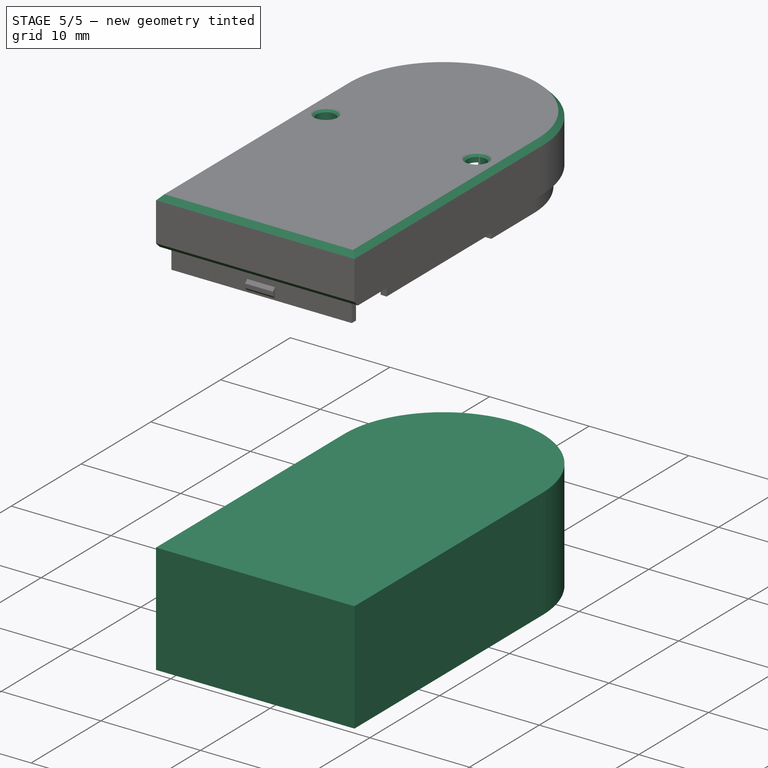
[diagram: stage 5 of 5 — iso view after this stage's code; geometry added in this stage tinted green]
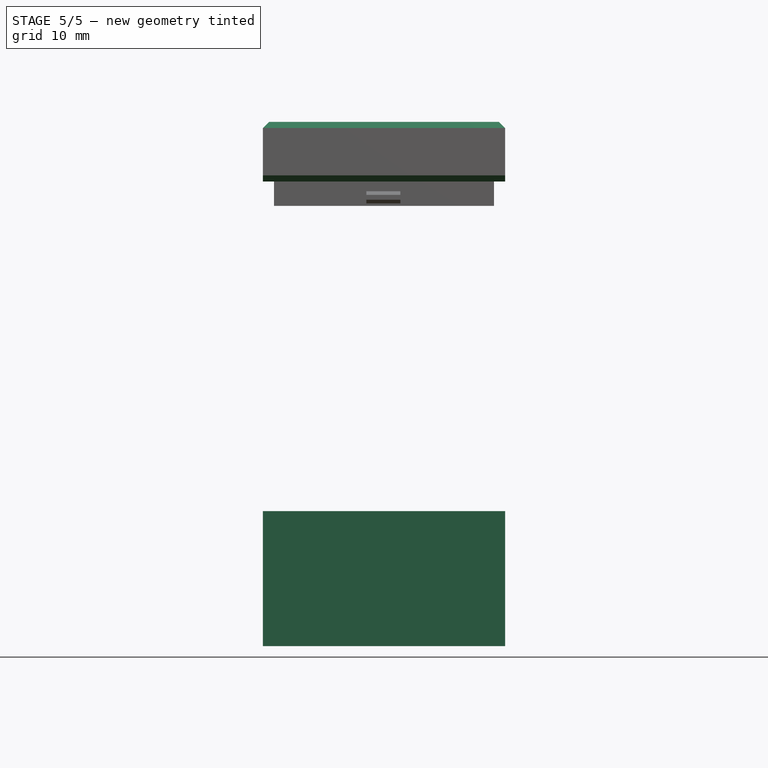
[diagram: stage 5 of 5 — front view after this stage's code; geometry added in this stage tinted green]
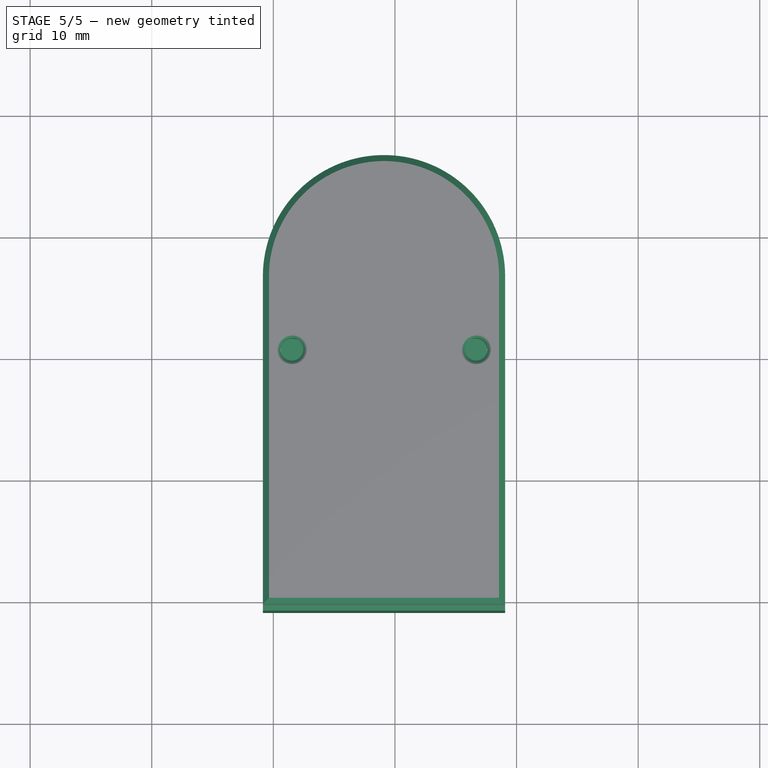
[diagram: stage 5 of 5 — top view after this stage's code; geometry added in this stage tinted green]
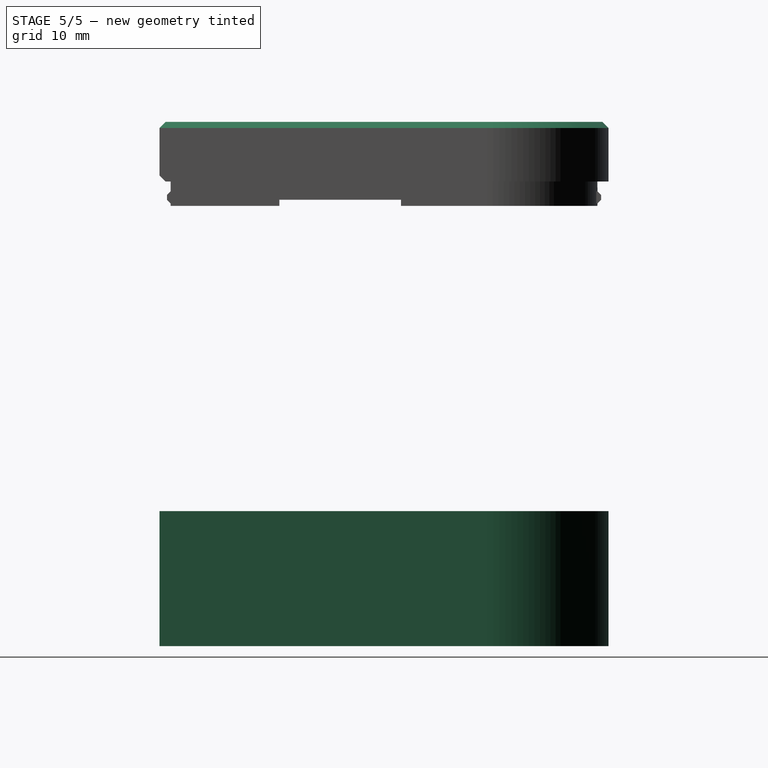
[diagram: stage 5 of 5 — right view after this stage's code; geometry added in this stage tinted green]
FEATURE [PartDesign::SubShapeBinder] Import  label="Import(Sketch)"
  BindCopyOnChange = 0
  BindMode = 0
  ClaimChildren = false
  Context = -> Part [Body002.Import.]
  Fuse = false
  MakeFace = false
  OffsetFill = false
  OffsetIntersection = false
  OffsetJoinType = 0
  OffsetOpenResult = false
  PartialLoad = false
  Relative = true
  Support = -> [Body[Sketch.]]
  _Version = 8
FEATURE [PartDesign::Pad] Pad005
  Direction = (0,0,1)
  Length = 8.8
  Length2 = 2.3
  Profile = -> Import
  Type = 4
FEATURE [PartDesign::Pocket] Pocket009
  BaseFeature = -> Pad006
  Direction = (0,0,1)
  Length = 10
  Length2 = 100
  Midplane = true
  Profile = -> Sketch013
  Type = 0
FEATURE [PartDesign::Chamfer] Chamfer
  Angle = 45
  Base = -> Pocket009 [Edge3]
  BaseFeature = -> Pocket009
  ChamferType = 0
  FlipDirection = false
  Size = 0.5
  Size2 = 1
  SupportTransform = false
  UseAllEdges = false
FEATURE [PartDesign::Chamfer] Chamfer001
  Angle = 45
  Base = -> Chamfer [Edge6,Edge12,Edge11,Edge3]
  BaseFeature = -> Chamfer
  ChamferType = 0
  FlipDirection = false
  Size = 0.5
  Size2 = 1
  SupportTransform = false
  UseAllEdges = false
FEATURE [PartDesign::Chamfer] Chamfer006
  Angle = 45
  Base = -> Chamfer001 [Edge29,Edge30]
  BaseFeature = -> Chamfer001
  ChamferType = 0
  FlipDirection = false
  Size = 0.3
  Size2 = 1
  SupportTransform = false
  UseAllEdges = false
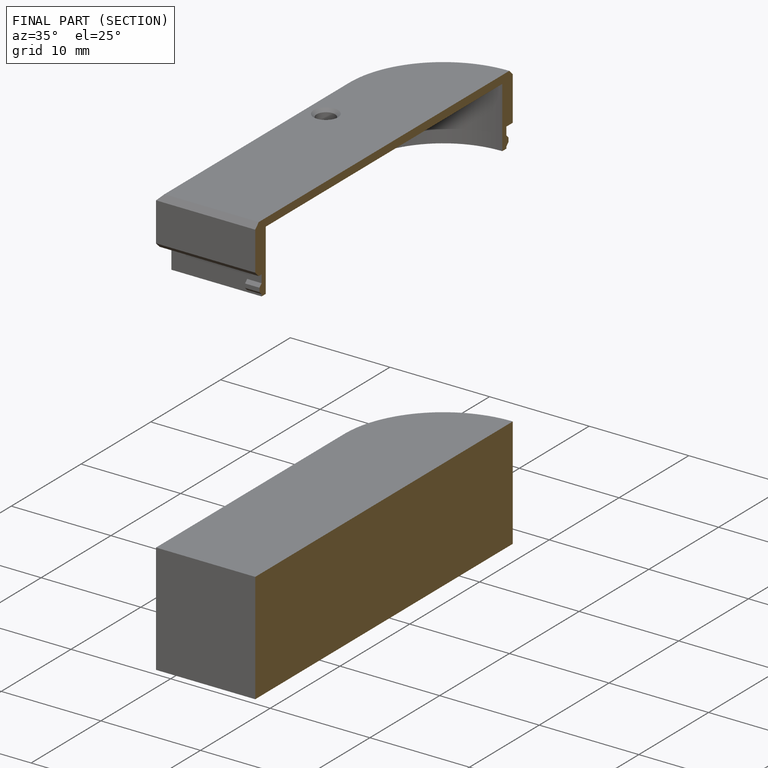
[diagram: finished part — half-section view (interior)]
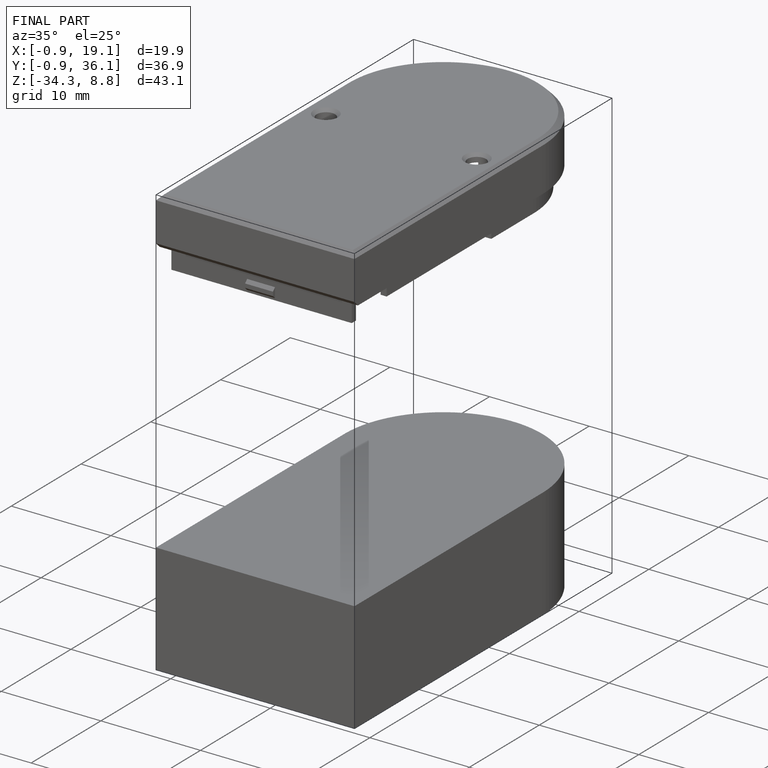
[diagram: finished part — iso view with bounding-box wireframe]
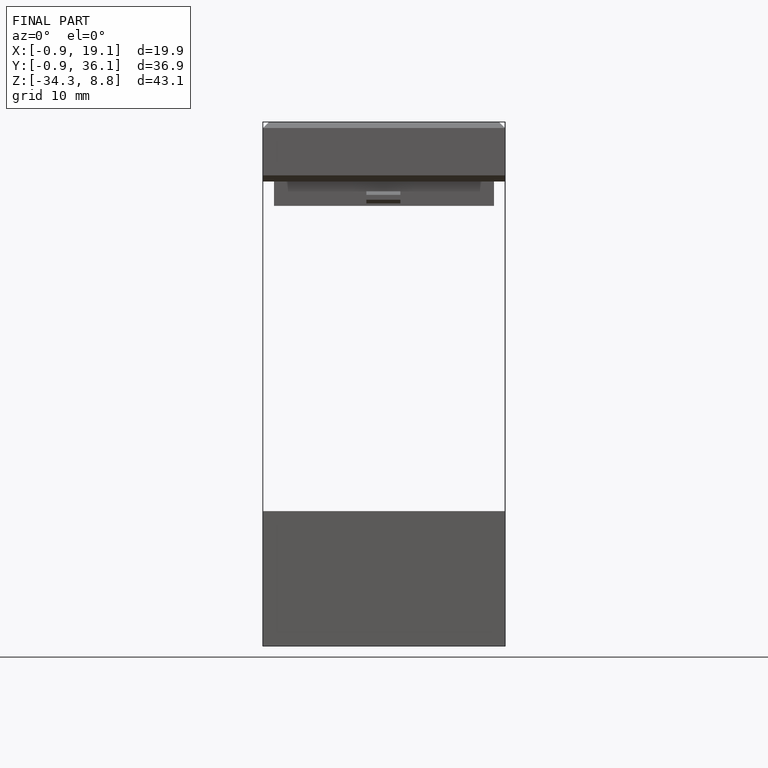
[diagram: finished part — front view with bounding-box wireframe]
